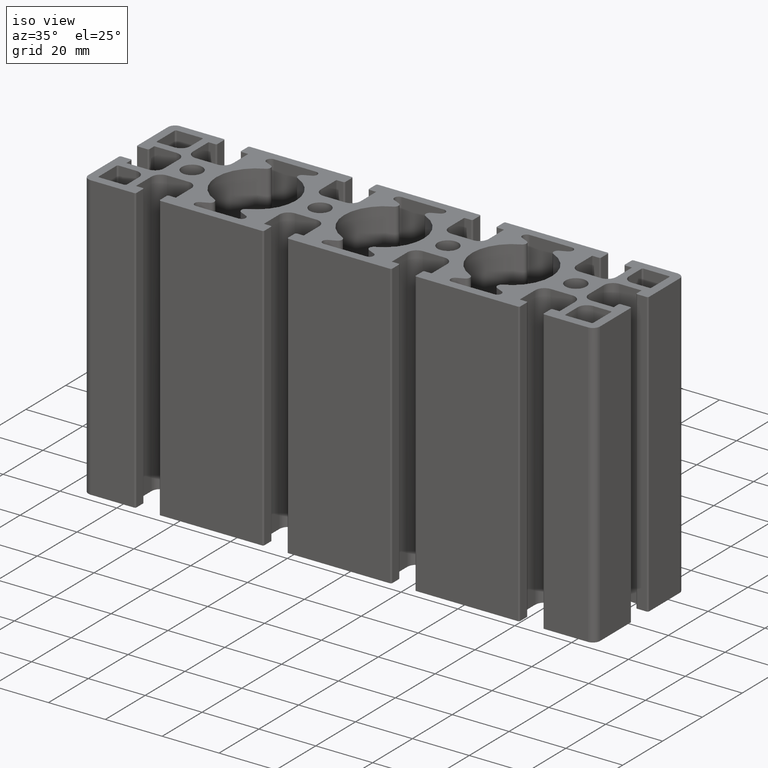
[diagram: clean part render]
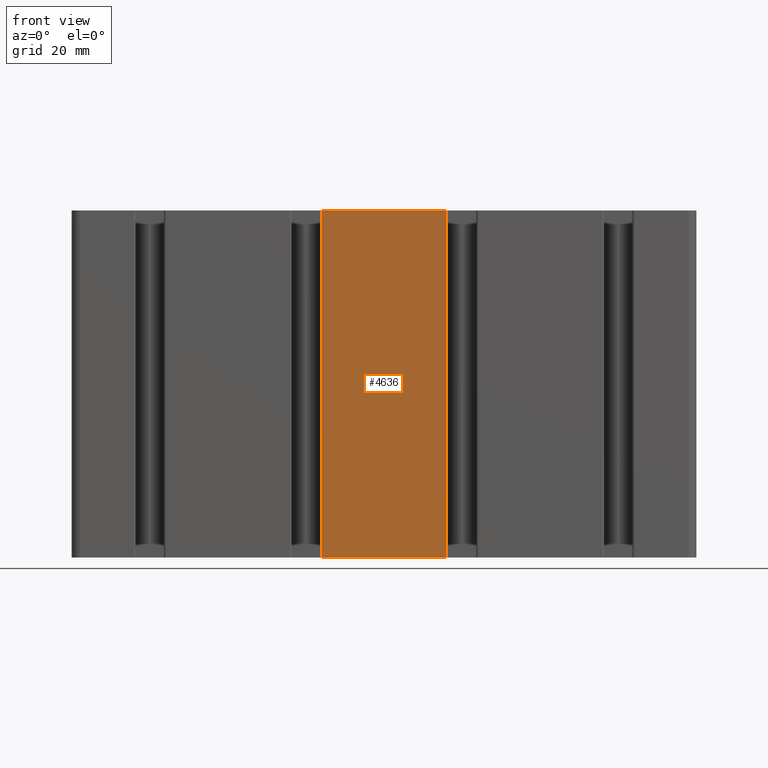
[diagram: tour spotlight — one face highlighted and labeled with its STEP entity id]
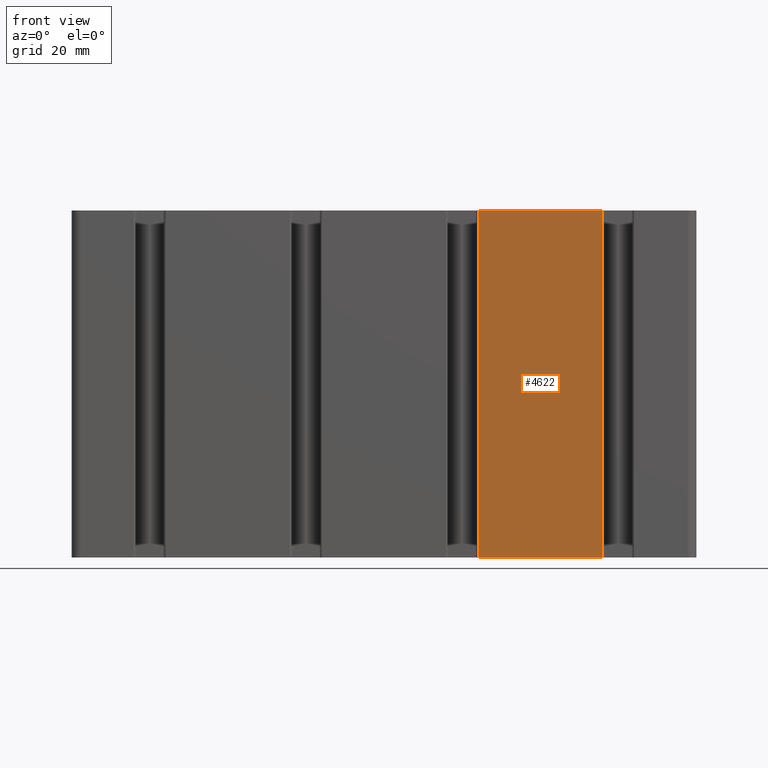
[diagram: tour spotlight — one face highlighted and labeled with its STEP entity id]
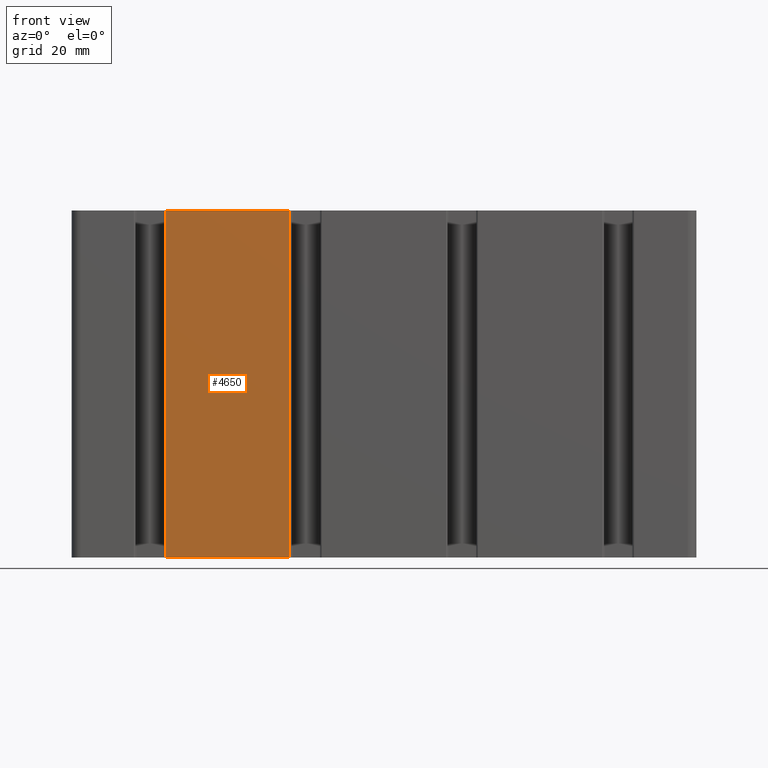
[diagram: tour spotlight — one face highlighted and labeled with its STEP entity id]
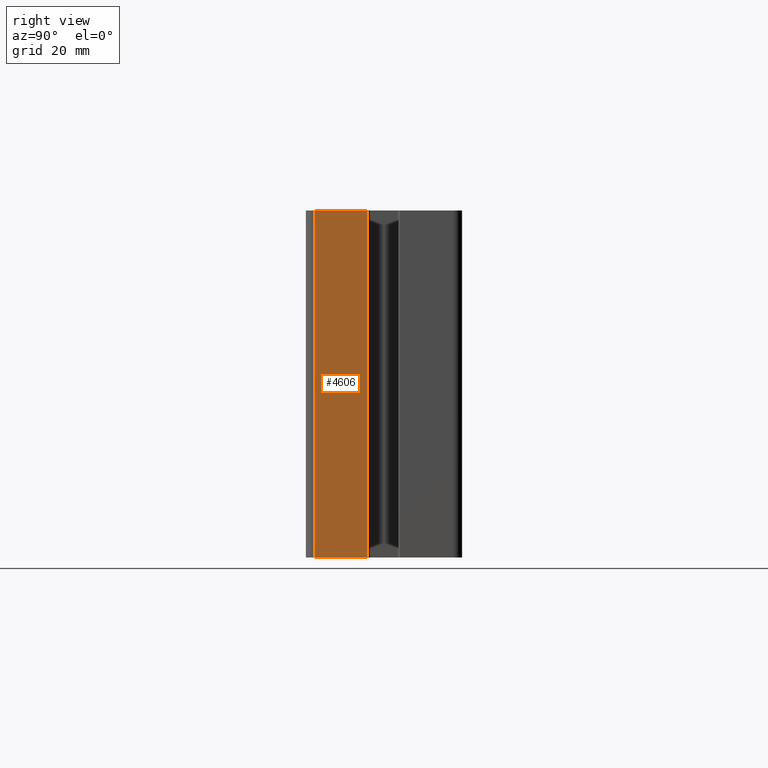
[diagram: tour spotlight — one face highlighted and labeled with its STEP entity id]
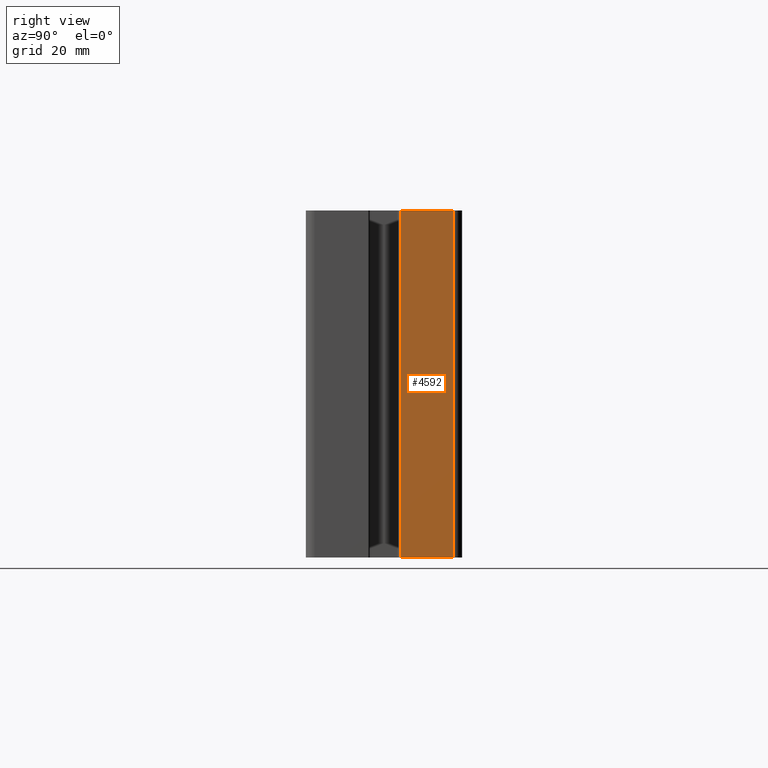
[diagram: tour spotlight — one face highlighted and labeled with its STEP entity id]
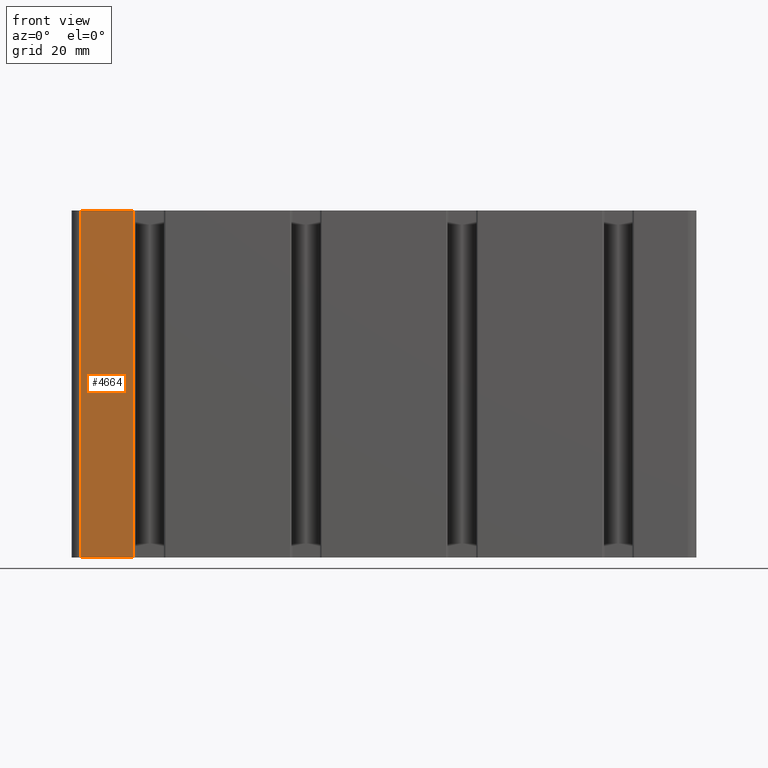
[diagram: tour spotlight — one face highlighted and labeled with its STEP entity id]
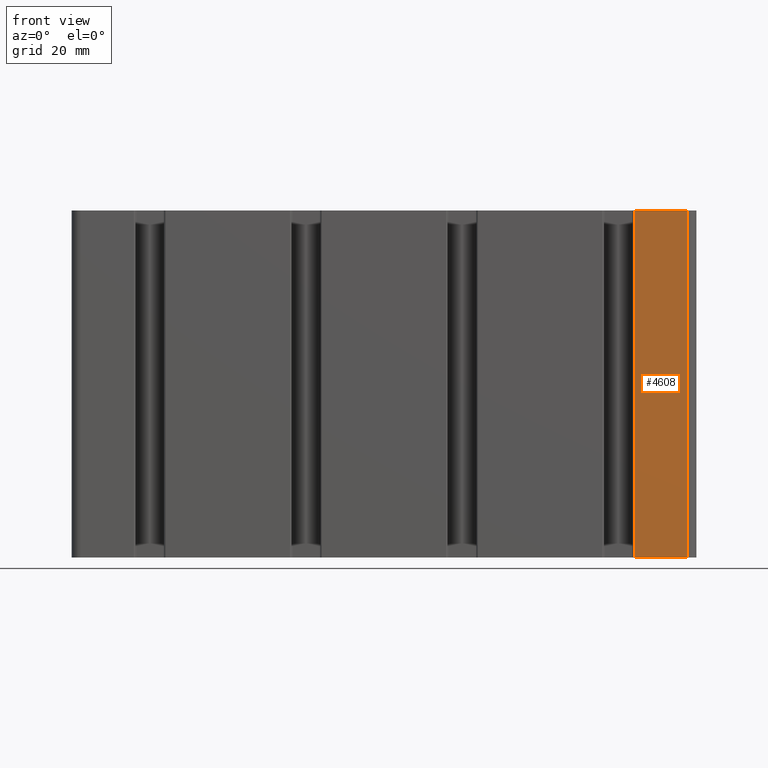
[diagram: tour spotlight — one face highlighted and labeled with its STEP entity id]
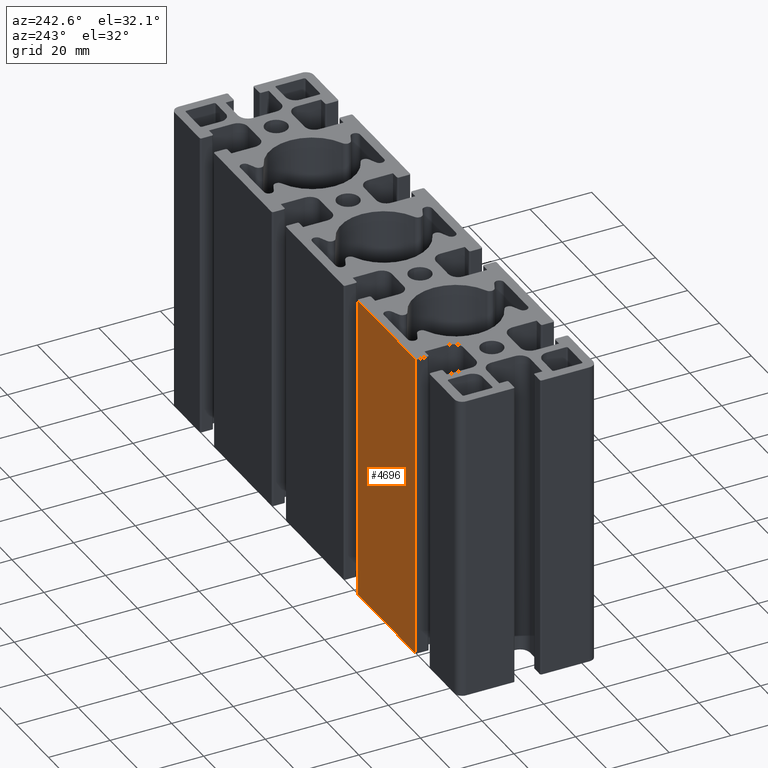
[diagram: tour spotlight — one face highlighted and labeled with its STEP entity id]
A machine part: a face-by-face anatomy tour. The part has 234 B-rep faces; the first image is the clean iso view, then the 8 largest visible faces are spotlighted one at a time (largest first), each with its STEP entity span.

Face 1 — front view, entity #4636. In plain terms, the highlighted planar face has unit normal (0, -1, 0).
Definition (entity closure, byte-faithful):
#124=PLANE('',#5048);
#332=FACE_OUTER_BOUND('',#570,.T.);
#570=EDGE_LOOP('',(#3643,#3644,#3645,#3646));
#988=LINE('',#7578,#1452);
#989=LINE('',#7581,#1453);
#990=LINE('',#7583,#1454);
#991=LINE('',#7584,#1455);
#1452=VECTOR('',#6192,100.);
#1453=VECTOR('',#6195,35.7000000000002);
#1454=VECTOR('',#6196,35.7000000000002);
#1455=VECTOR('',#6197,100.);
#2153=VERTEX_POINT('',#7574);
#2154=VERTEX_POINT('',#7576);
#2155=VERTEX_POINT('',#7580);
#2156=VERTEX_POINT('',#7582);
#2784=EDGE_CURVE('',#2153,#2154,#988,.T.);
#2785=EDGE_CURVE('',#2153,#2155,#989,.T.);
#2786=EDGE_CURVE('',#2156,#2154,#990,.T.);
#2787=EDGE_CURVE('',#2155,#2156,#991,.T.);
#3643=ORIENTED_EDGE('',*,*,#2785,.F.);
#3644=ORIENTED_EDGE('',*,*,#2784,.T.);
#3645=ORIENTED_EDGE('',*,*,#2786,.F.);
#3646=ORIENTED_EDGE('',*,*,#2787,.F.);
#4636=ADVANCED_FACE('',(#332),#124,.T.);
#5048=AXIS2_PLACEMENT_3D('',#7579,#6193,#6194);
#6192=DIRECTION('',(0.,0.,1.));
#6193=DIRECTION('center_axis',(9.95157893221422E-16,-1.,0.));
#6194=DIRECTION('ref_axis',(1.,1.06581410364015E-15,0.));
#6195=DIRECTION('',(-1.,-9.95157893221422E-16,0.));
#6196=DIRECTION('',(1.,9.95157893221422E-16,0.));
#6197=DIRECTION('',(0.,0.,1.));
#7574=CARTESIAN_POINT('',(17.8499999999999,-22.5,0.));
#7576=CARTESIAN_POINT('',(17.8499999999999,-22.5,100.));
#7578=CARTESIAN_POINT('',(17.8499999999999,-22.5,0.));
#7579=CARTESIAN_POINT('Origin',(-17.8500000000004,-22.5000000000001,0.));
#7580=CARTESIAN_POINT('',(-17.8500000000004,-22.5000000000001,0.));
#7581=CARTESIAN_POINT('',(17.8499999999999,-22.5,0.));
#7582=CARTESIAN_POINT('',(-17.8500000000004,-22.5000000000001,100.));
#7583=CARTESIAN_POINT('',(17.8499999999999,-22.5,100.));
#7584=CARTESIAN_POINT('',(-17.8500000000004,-22.5000000000001,0.));

Face 2 — front view, entity #4622. In plain terms, the highlighted planar face has unit normal (0, -1, 0).
Definition (entity closure, byte-faithful):
#116=PLANE('',#5022);
#318=FACE_OUTER_BOUND('',#556,.T.);
#556=EDGE_LOOP('',(#3587,#3588,#3589,#3590));
#958=LINE('',#7494,#1422);
#959=LINE('',#7497,#1423);
#960=LINE('',#7499,#1424);
#961=LINE('',#7500,#1425);
#1422=VECTOR('',#6110,100.);
#1423=VECTOR('',#6113,35.6999999999998);
#1424=VECTOR('',#6114,35.6999999999998);
#1425=VECTOR('',#6115,100.);
#2125=VERTEX_POINT('',#7490);
#2126=VERTEX_POINT('',#7492);
#2127=VERTEX_POINT('',#7496);
#2128=VERTEX_POINT('',#7498);
#2742=EDGE_CURVE('',#2125,#2126,#958,.T.);
#2743=EDGE_CURVE('',#2125,#2127,#959,.T.);
#2744=EDGE_CURVE('',#2128,#2126,#960,.T.);
#2745=EDGE_CURVE('',#2127,#2128,#961,.T.);
#3587=ORIENTED_EDGE('',*,*,#2743,.F.);
#3588=ORIENTED_EDGE('',*,*,#2742,.T.);
#3589=ORIENTED_EDGE('',*,*,#2744,.F.);
#3590=ORIENTED_EDGE('',*,*,#2745,.F.);
#4622=ADVANCED_FACE('',(#318),#116,.T.);
#5022=AXIS2_PLACEMENT_3D('',#7495,#6111,#6112);
#6110=DIRECTION('',(0.,0.,1.));
#6111=DIRECTION('center_axis',(4.97578946610717E-16,-1.,0.));
#6112=DIRECTION('ref_axis',(1.,3.5527136788005E-16,0.));
#6113=DIRECTION('',(-1.,-4.97578946610717E-16,0.));
#6114=DIRECTION('',(1.,4.97578946610717E-16,0.));
#6115=DIRECTION('',(0.,0.,1.));
#7490=CARTESIAN_POINT('',(62.8499999999999,-22.5,0.));
#7492=CARTESIAN_POINT('',(62.8499999999999,-22.5,100.));
#7494=CARTESIAN_POINT('',(62.8499999999999,-22.5,0.));
#7495=CARTESIAN_POINT('Origin',(27.1500000000001,-22.5,0.));
#7496=CARTESIAN_POINT('',(27.1500000000001,-22.5,0.));
#7497=CARTESIAN_POINT('',(62.8499999999999,-22.5,0.));
#7498=CARTESIAN_POINT('',(27.1500000000001,-22.5,100.));
#7499=CARTESIAN_POINT('',(62.8499999999999,-22.5,100.));
#7500=CARTESIAN_POINT('',(27.1500000000001,-22.5,0.));

Face 3 — front view, entity #4650. In plain terms, the highlighted planar face has unit normal (-0, -1, 0).
Definition (entity closure, byte-faithful):
#132=PLANE('',#5074);
#346=FACE_OUTER_BOUND('',#584,.T.);
#584=EDGE_LOOP('',(#3699,#3700,#3701,#3702));
#1018=LINE('',#7662,#1482);
#1019=LINE('',#7665,#1483);
#1020=LINE('',#7667,#1484);
#1021=LINE('',#7668,#1485);
#1482=VECTOR('',#6274,100.);
#1483=VECTOR('',#6277,35.6999999999998);
#1484=VECTOR('',#6278,35.6999999999998);
#1485=VECTOR('',#6279,100.);
#2181=VERTEX_POINT('',#7658);
#2182=VERTEX_POINT('',#7660);
#2183=VERTEX_POINT('',#7664);
#2184=VERTEX_POINT('',#7666);
#2826=EDGE_CURVE('',#2181,#2182,#1018,.T.);
#2827=EDGE_CURVE('',#2181,#2183,#1019,.T.);
#2828=EDGE_CURVE('',#2184,#2182,#1020,.T.);
#2829=EDGE_CURVE('',#2183,#2184,#1021,.T.);
#3699=ORIENTED_EDGE('',*,*,#2827,.F.);
#3700=ORIENTED_EDGE('',*,*,#2826,.T.);
#3701=ORIENTED_EDGE('',*,*,#2828,.F.);
#3702=ORIENTED_EDGE('',*,*,#2829,.F.);
#4650=ADVANCED_FACE('',(#346),#132,.T.);
#5074=AXIS2_PLACEMENT_3D('',#7663,#6275,#6276);
#6274=DIRECTION('',(0.,0.,1.));
#6275=DIRECTION('center_axis',(-1.49273683983215E-15,-1.,0.));
#6276=DIRECTION('ref_axis',(1.,-1.4210854715202E-15,0.));
#6277=DIRECTION('',(-1.,1.49273683983215E-15,0.));
#6278=DIRECTION('',(1.,-1.49273683983215E-15,0.));
#6279=DIRECTION('',(0.,0.,1.));
#7658=CARTESIAN_POINT('',(-27.1500000000003,-22.5000000000001,0.));
#7660=CARTESIAN_POINT('',(-27.1500000000003,-22.5000000000001,100.));
#7662=CARTESIAN_POINT('',(-27.1500000000003,-22.5000000000001,0.));
#7663=CARTESIAN_POINT('Origin',(-62.8500000000001,-22.5,0.));
#7664=CARTESIAN_POINT('',(-62.8500000000001,-22.5,0.));
#7665=CARTESIAN_POINT('',(-27.1500000000003,-22.5000000000001,0.));
#7666=CARTESIAN_POINT('',(-62.8500000000001,-22.5,100.));
#7667=CARTESIAN_POINT('',(-27.1500000000003,-22.5000000000001,100.));
#7668=CARTESIAN_POINT('',(-62.8500000000001,-22.5,0.));

Face 4 — right view, entity #4606. In plain terms, the highlighted planar face has unit normal (1, 0, 0).
Definition (entity closure, byte-faithful):
#107=PLANE('',#4992);
#302=FACE_OUTER_BOUND('',#540,.T.);
#540=EDGE_LOOP('',(#3523,#3524,#3525,#3526));
#924=LINE('',#7398,#1388);
#925=LINE('',#7401,#1389);
#926=LINE('',#7403,#1390);
#927=LINE('',#7404,#1391);
#1388=VECTOR('',#6016,100.);
#1389=VECTOR('',#6019,15.3499999999999);
#1390=VECTOR('',#6020,15.3499999999999);
#1391=VECTOR('',#6021,100.);
#2093=VERTEX_POINT('',#7394);
#2094=VERTEX_POINT('',#7396);
#2095=VERTEX_POINT('',#7400);
#2096=VERTEX_POINT('',#7402);
#2694=EDGE_CURVE('',#2093,#2094,#924,.T.);
#2695=EDGE_CURVE('',#2093,#2095,#925,.T.);
#2696=EDGE_CURVE('',#2096,#2094,#926,.T.);
#2697=EDGE_CURVE('',#2095,#2096,#927,.T.);
#3523=ORIENTED_EDGE('',*,*,#2695,.F.);
#3524=ORIENTED_EDGE('',*,*,#2694,.T.);
#3525=ORIENTED_EDGE('',*,*,#2696,.F.);
#3526=ORIENTED_EDGE('',*,*,#2697,.F.);
#4606=ADVANCED_FACE('',(#302),#107,.T.);
#4992=AXIS2_PLACEMENT_3D('',#7399,#6017,#6018);
#6016=DIRECTION('',(0.,0.,1.));
#6017=DIRECTION('center_axis',(1.,0.,0.));
#6018=DIRECTION('ref_axis',(0.,1.,0.));
#6019=DIRECTION('',(0.,-1.,0.));
#6020=DIRECTION('',(0.,1.,0.));
#6021=DIRECTION('',(0.,0.,1.));
#7394=CARTESIAN_POINT('',(90.,-4.65000000000009,0.));
#7396=CARTESIAN_POINT('',(90.,-4.65000000000009,100.));
#7398=CARTESIAN_POINT('',(90.,-4.65000000000009,0.));
#7399=CARTESIAN_POINT('Origin',(90.,-20.,0.));
#7400=CARTESIAN_POINT('',(90.,-20.,0.));
#7401=CARTESIAN_POINT('',(90.,-4.65000000000009,0.));
#7402=CARTESIAN_POINT('',(90.,-20.,100.));
#7403=CARTESIAN_POINT('',(90.,-4.65000000000009,100.));
#7404=CARTESIAN_POINT('',(90.,-20.,0.));

Face 5 — right view, entity #4592. In plain terms, the highlighted planar face has unit normal (1, -0, 0).
Definition (entity closure, byte-faithful):
#99=PLANE('',#4966);
#288=FACE_OUTER_BOUND('',#526,.T.);
#526=EDGE_LOOP('',(#3467,#3468,#3469,#3470));
#894=LINE('',#7314,#1358);
#895=LINE('',#7317,#1359);
#896=LINE('',#7319,#1360);
#897=LINE('',#7320,#1361);
#1358=VECTOR('',#5934,100.);
#1359=VECTOR('',#5937,15.3500000000002);
#1360=VECTOR('',#5938,15.3500000000002);
#1361=VECTOR('',#5939,100.);
#2065=VERTEX_POINT('',#7310);
#2066=VERTEX_POINT('',#7312);
#2067=VERTEX_POINT('',#7316);
#2068=VERTEX_POINT('',#7318);
#2652=EDGE_CURVE('',#2065,#2066,#894,.T.);
#2653=EDGE_CURVE('',#2065,#2067,#895,.T.);
#2654=EDGE_CURVE('',#2068,#2066,#896,.T.);
#2655=EDGE_CURVE('',#2067,#2068,#897,.T.);
#3467=ORIENTED_EDGE('',*,*,#2653,.F.);
#3468=ORIENTED_EDGE('',*,*,#2652,.T.);
#3469=ORIENTED_EDGE('',*,*,#2654,.F.);
#3470=ORIENTED_EDGE('',*,*,#2655,.F.);
#4592=ADVANCED_FACE('',(#288),#99,.T.);
#4966=AXIS2_PLACEMENT_3D('',#7315,#5935,#5936);
#5934=DIRECTION('',(0.,0.,1.));
#5935=DIRECTION('center_axis',(1.,-4.62894290397452E-15,0.));
#5936=DIRECTION('ref_axis',(4.2632564145606E-15,1.,0.));
#5937=DIRECTION('',(-4.62894290397452E-15,-1.,0.));
#5938=DIRECTION('',(4.62894290397452E-15,1.,0.));
#5939=DIRECTION('',(0.,0.,1.));
#7310=CARTESIAN_POINT('',(90.,20.0000000000001,0.));
#7312=CARTESIAN_POINT('',(90.,20.0000000000001,100.));
#7314=CARTESIAN_POINT('',(90.,20.0000000000001,0.));
#7315=CARTESIAN_POINT('Origin',(89.9999999999999,4.64999999999984,0.));
#7316=CARTESIAN_POINT('',(89.9999999999999,4.64999999999984,0.));
#7317=CARTESIAN_POINT('',(90.,20.0000000000001,0.));
#7318=CARTESIAN_POINT('',(89.9999999999999,4.64999999999984,100.));
#7319=CARTESIAN_POINT('',(90.,20.0000000000001,100.));
#7320=CARTESIAN_POINT('',(89.9999999999999,4.64999999999984,0.));

Face 6 — front view, entity #4664. In plain terms, the highlighted planar face has unit normal (0, -1, 0).
Definition (entity closure, byte-faithful):
#140=PLANE('',#5100);
#360=FACE_OUTER_BOUND('',#598,.T.);
#598=EDGE_LOOP('',(#3755,#3756,#3757,#3758));
#1048=LINE('',#7746,#1512);
#1049=LINE('',#7749,#1513);
#1050=LINE('',#7751,#1514);
#1051=LINE('',#7752,#1515);
#1512=VECTOR('',#6356,100.);
#1513=VECTOR('',#6359,15.35);
#1514=VECTOR('',#6360,15.35);
#1515=VECTOR('',#6361,100.);
#2209=VERTEX_POINT('',#7742);
#2210=VERTEX_POINT('',#7744);
#2211=VERTEX_POINT('',#7748);
#2212=VERTEX_POINT('',#7750);
#2868=EDGE_CURVE('',#2209,#2210,#1048,.T.);
#2869=EDGE_CURVE('',#2209,#2211,#1049,.T.);
#2870=EDGE_CURVE('',#2212,#2210,#1050,.T.);
#2871=EDGE_CURVE('',#2211,#2212,#1051,.T.);
#3755=ORIENTED_EDGE('',*,*,#2869,.F.);
#3756=ORIENTED_EDGE('',*,*,#2868,.T.);
#3757=ORIENTED_EDGE('',*,*,#2870,.F.);
#3758=ORIENTED_EDGE('',*,*,#2871,.F.);
#4664=ADVANCED_FACE('',(#360),#140,.T.);
#5100=AXIS2_PLACEMENT_3D('',#7747,#6357,#6358);
#6356=DIRECTION('',(0.,0.,1.));
#6357=DIRECTION('center_axis',(1.15723572599365E-15,-1.,0.));
#6358=DIRECTION('ref_axis',(1.,1.06581410364015E-15,0.));
#6359=DIRECTION('',(-1.,-1.15723572599365E-15,0.));
#6360=DIRECTION('',(1.,1.15723572599365E-15,0.));
#6361=DIRECTION('',(0.,0.,1.));
#7742=CARTESIAN_POINT('',(-72.1500000000002,-22.5,0.));
#7744=CARTESIAN_POINT('',(-72.1500000000002,-22.5,100.));
#7746=CARTESIAN_POINT('',(-72.1500000000002,-22.5,0.));
#7747=CARTESIAN_POINT('Origin',(-87.5000000000003,-22.5,0.));
#7748=CARTESIAN_POINT('',(-87.5000000000003,-22.5,0.));
#7749=CARTESIAN_POINT('',(-72.1500000000002,-22.5,0.));
#7750=CARTESIAN_POINT('',(-87.5000000000003,-22.5,100.));
#7751=CARTESIAN_POINT('',(-72.1500000000002,-22.5,100.));
#7752=CARTESIAN_POINT('',(-87.5000000000003,-22.5,0.));

Face 7 — front view, entity #4608. In plain terms, the highlighted planar face has unit normal (0, -1, 0).
Definition (entity closure, byte-faithful):
#108=PLANE('',#4996);
#304=FACE_OUTER_BOUND('',#542,.T.);
#542=EDGE_LOOP('',(#3531,#3532,#3533,#3534));
#928=LINE('',#7410,#1392);
#929=LINE('',#7413,#1393);
#930=LINE('',#7415,#1394);
#931=LINE('',#7416,#1395);
#1392=VECTOR('',#6028,100.);
#1393=VECTOR('',#6031,15.35);
#1394=VECTOR('',#6032,15.35);
#1395=VECTOR('',#6033,100.);
#2097=VERTEX_POINT('',#7406);
#2098=VERTEX_POINT('',#7408);
#2099=VERTEX_POINT('',#7412);
#2100=VERTEX_POINT('',#7414);
#2700=EDGE_CURVE('',#2097,#2098,#928,.T.);
#2701=EDGE_CURVE('',#2097,#2099,#929,.T.);
#2702=EDGE_CURVE('',#2100,#2098,#930,.T.);
#2703=EDGE_CURVE('',#2099,#2100,#931,.T.);
#3531=ORIENTED_EDGE('',*,*,#2701,.F.);
#3532=ORIENTED_EDGE('',*,*,#2700,.T.);
#3533=ORIENTED_EDGE('',*,*,#2702,.F.);
#3534=ORIENTED_EDGE('',*,*,#2703,.F.);
#4608=ADVANCED_FACE('',(#304),#108,.T.);
#4996=AXIS2_PLACEMENT_3D('',#7411,#6029,#6030);
#6028=DIRECTION('',(0.,0.,1.));
#6029=DIRECTION('center_axis',(3.47170717798095E-15,-1.,0.));
#6030=DIRECTION('ref_axis',(1.,3.5527136788005E-15,0.));
#6031=DIRECTION('',(-1.,-3.47170717798095E-15,0.));
#6032=DIRECTION('',(1.,3.47170717798095E-15,0.));
#6033=DIRECTION('',(0.,0.,1.));
#7406=CARTESIAN_POINT('',(87.5000000000001,-22.5,0.));
#7408=CARTESIAN_POINT('',(87.5000000000001,-22.5,100.));
#7410=CARTESIAN_POINT('',(87.5000000000001,-22.5,0.));
#7411=CARTESIAN_POINT('Origin',(72.1500000000001,-22.5000000000001,0.));
#7412=CARTESIAN_POINT('',(72.1500000000001,-22.5000000000001,0.));
#7413=CARTESIAN_POINT('',(87.5000000000001,-22.5,0.));
#7414=CARTESIAN_POINT('',(72.1500000000001,-22.5000000000001,100.));
#7415=CARTESIAN_POINT('',(87.5000000000001,-22.5,100.));
#7416=CARTESIAN_POINT('',(72.1500000000001,-22.5000000000001,0.));

Face 8 — auxiliary view, entity #4696. In plain terms, the highlighted planar face has unit normal (0, 1, 0).
Definition (entity closure, byte-faithful):
#158=PLANE('',#5160);
#392=FACE_OUTER_BOUND('',#630,.T.);
#630=EDGE_LOOP('',(#3883,#3884,#3885,#3886));
#803=LINE('',#7059,#1267);
#1116=LINE('',#7938,#1580);
#1117=LINE('',#7940,#1581);
#1118=LINE('',#7941,#1582);
#1267=VECTOR('',#5685,100.);
#1580=VECTOR('',#6544,100.);
#1581=VECTOR('',#6547,35.7000000000003);
#1582=VECTOR('',#6548,35.7000000000003);
#1979=VERTEX_POINT('',#7055);
#1981=VERTEX_POINT('',#7058);
#2273=VERTEX_POINT('',#7934);
#2274=VERTEX_POINT('',#7936);
#2524=EDGE_CURVE('',#1979,#1981,#803,.T.);
#2964=EDGE_CURVE('',#2273,#2274,#1116,.T.);
#2965=EDGE_CURVE('',#2273,#1979,#1117,.T.);
#2966=EDGE_CURVE('',#1981,#2274,#1118,.T.);
#3883=ORIENTED_EDGE('',*,*,#2965,.F.);
#3884=ORIENTED_EDGE('',*,*,#2964,.T.);
#3885=ORIENTED_EDGE('',*,*,#2966,.F.);
#3886=ORIENTED_EDGE('',*,*,#2524,.F.);
#4696=ADVANCED_FACE('',(#392),#158,.T.);
#5160=AXIS2_PLACEMENT_3D('',#7939,#6545,#6546);
#5685=DIRECTION('',(0.,0.,1.));
#6544=DIRECTION('',(0.,0.,1.));
#6545=DIRECTION('center_axis',(1.49273683983213E-15,1.,0.));
#6546=DIRECTION('ref_axis',(-1.,1.4210854715202E-15,0.));
#6547=DIRECTION('',(1.,-1.49273683983213E-15,0.));
#6548=DIRECTION('',(-1.,1.49273683983213E-15,0.));
#7055=CARTESIAN_POINT('',(-27.1500000000001,22.4999999999999,0.));
#7058=CARTESIAN_POINT('',(-27.1500000000001,22.4999999999999,100.));
#7059=CARTESIAN_POINT('',(-27.1500000000001,22.4999999999999,0.));
#7934=CARTESIAN_POINT('',(-62.8500000000004,22.5,0.));
#7936=CARTESIAN_POINT('',(-62.8500000000004,22.5,100.));
#7938=CARTESIAN_POINT('',(-62.8500000000004,22.5,0.));
#7939=CARTESIAN_POINT('Origin',(-27.1500000000001,22.4999999999999,0.));
#7940=CARTESIAN_POINT('',(-62.8500000000004,22.5,0.));
#7941=CARTESIAN_POINT('',(-62.8500000000004,22.5,100.));